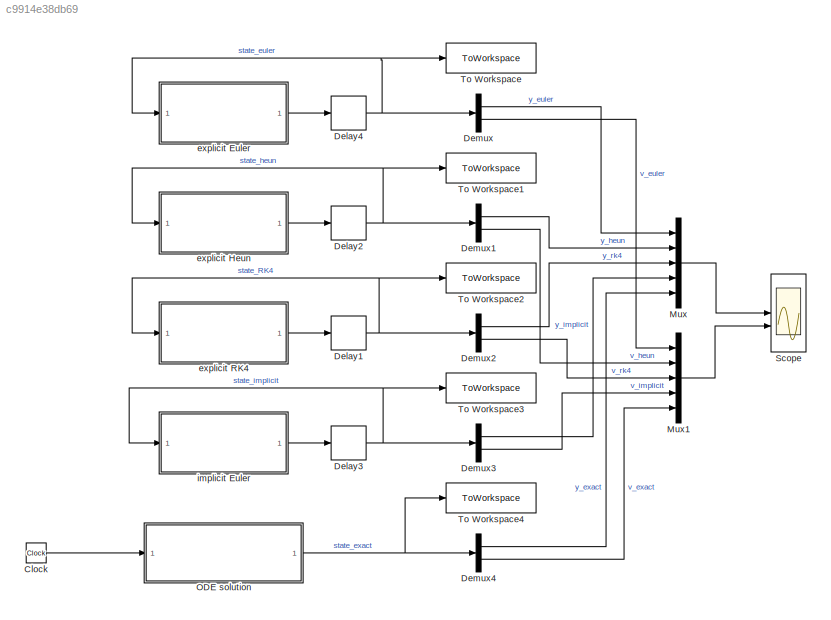
MODEL slx_c9914e38db69
KIND model
CONFIG AbsTol = auto
CONFIG EnableMultiTasking = off
CONFIG FixedStep = timeStep
CONFIG MaxStep = auto
CONFIG MinStep = auto
CONFIG RelTol = 1e-3
CONFIG SampleTimeConstraint = Unconstrained
CONFIG SolverName = ode4
CONFIG StartTime = 0.0
CONFIG StopTime = timeEnd
BLOCK [Clock] Clock
BLOCK [Delay] Delay1
  DelayLength = 1
  InitialCondition = stateInit
  InputPortMap = u0
BLOCK [Delay] Delay2
  DelayLength = 1
  InitialCondition = stateInit
  InputPortMap = u0
BLOCK [Delay] Delay3
  DelayLength = 1
  InitialCondition = stateInit
  InputPortMap = u0
BLOCK [Delay] Delay4
  DelayLength = 1
  InitialCondition = stateInit
  InputPortMap = u0
BLOCK [Demux] Demux
  Outputs = 2
BLOCK [Demux] Demux1
  Outputs = 2
BLOCK [Demux] Demux2
  Outputs = 2
BLOCK [Demux] Demux3
  Outputs = 2
BLOCK [Demux] Demux4
  Outputs = 2
BLOCK [Mux] Mux
  DisplayOption = bar
  Inputs = 5
BLOCK [Mux] Mux1
  DisplayOption = bar
  Inputs = 5
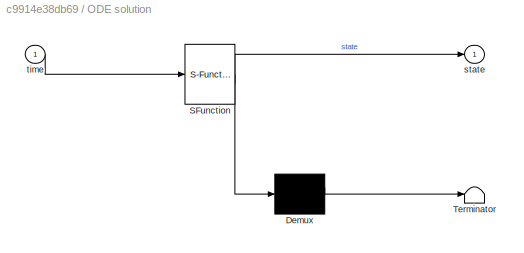
BLOCK [SubSystem] ODE solution
  ErrorFcn = Stateflow.Translate.translate
  PermitHierarchicalResolution = ExplicitOnly
  SFBlockType = MATLAB Function
  TreatAsAtomicUnit = on
BLOCK [Demux] ODE solution/ Demux 
  Outputs = 1
BLOCK [S-Function] ODE solution/ SFunction 
  EnableBusSupport = on
  FunctionName = sf_sfun
  Parameters = stateInit,sys
  PortCounts = [1 2]
  SFcnIsStateOwnerBlock = off
  SFunctionDeploymentMode = off
  Tag = Stateflow S-Function 5
BLOCK [Terminator] ODE solution/ Terminator 
BLOCK [Outport] ODE solution/state
BLOCK [Inport] ODE solution/time
BLOCK [Scope] Scope
  Floating = off
  NumInputPorts = 2
  ScopeSpecificationString = Simulink.scopes.TimeScopeBlockCfg('CurrentConfiguration', extmgr.ConfigurationSet(extmgr.Configuration('Core','General UI',true),extmgr.Configuration('Core','Source UI',true),extmgr.Configuration('Sources','WiredSimulink',true),extmgr.Configuration('Visuals','Time Domain',true,'SerializedDisplays',{struct('MinYLimReal','-1.58448','MaxYLimReal','1.59863','YLabelReal','','MinYLimMag','0.00000','MaxY...<+2356ch>
BLOCK [ToWorkspace] To Workspace
  FixptAsFi = on
  MaxDataPoints = inf
  SampleTime = -1
  SaveFormat = Timeseries
  VariableName = state_euler
BLOCK [ToWorkspace] To Workspace1
  FixptAsFi = on
  MaxDataPoints = inf
  SampleTime = -1
  SaveFormat = Timeseries
  VariableName = state_heun
BLOCK [ToWorkspace] To Workspace2
  FixptAsFi = on
  MaxDataPoints = inf
  SampleTime = -1
  SaveFormat = Timeseries
  VariableName = state_rk4
BLOCK [ToWorkspace] To Workspace3
  FixptAsFi = on
  MaxDataPoints = inf
  SampleTime = -1
  SaveFormat = Timeseries
  VariableName = state_implicit
BLOCK [ToWorkspace] To Workspace4
  FixptAsFi = on
  MaxDataPoints = inf
  SampleTime = -1
  SaveFormat = Timeseries
  VariableName = state_exact
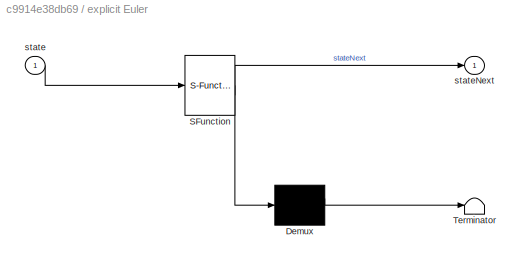
BLOCK [SubSystem] explicit Euler
  ErrorFcn = Stateflow.Translate.translate
  PermitHierarchicalResolution = ExplicitOnly
  SFBlockType = MATLAB Function
  TreatAsAtomicUnit = on
BLOCK [Demux] explicit Euler/ Demux 
  Outputs = 1
BLOCK [S-Function] explicit Euler/ SFunction 
  EnableBusSupport = on
  FunctionName = sf_sfun
  Parameters = sys,timeStep
  PortCounts = [1 2]
  SFcnIsStateOwnerBlock = off
  SFunctionDeploymentMode = off
  Tag = Stateflow S-Function 2
BLOCK [Terminator] explicit Euler/ Terminator 
BLOCK [Inport] explicit Euler/state
BLOCK [Outport] explicit Euler/stateNext
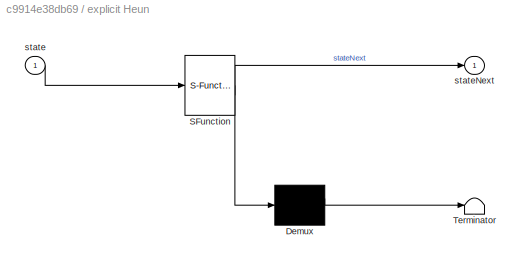
BLOCK [SubSystem] explicit Heun
  ErrorFcn = Stateflow.Translate.translate
  PermitHierarchicalResolution = ExplicitOnly
  SFBlockType = MATLAB Function
  TreatAsAtomicUnit = on
BLOCK [Demux] explicit Heun/ Demux 
  Outputs = 1
BLOCK [S-Function] explicit Heun/ SFunction 
  EnableBusSupport = on
  FunctionName = sf_sfun
  Parameters = sys,timeStep
  PortCounts = [1 2]
  SFcnIsStateOwnerBlock = off
  SFunctionDeploymentMode = off
  Tag = Stateflow S-Function 1
BLOCK [Terminator] explicit Heun/ Terminator 
BLOCK [Inport] explicit Heun/state
BLOCK [Outport] explicit Heun/stateNext
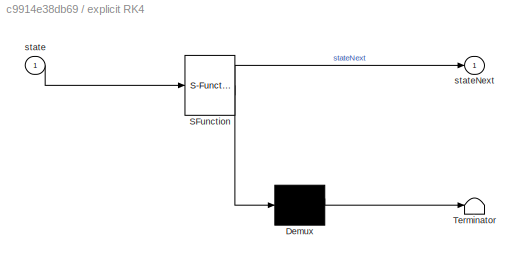
BLOCK [SubSystem] explicit RK4
  ErrorFcn = Stateflow.Translate.translate
  PermitHierarchicalResolution = ExplicitOnly
  SFBlockType = MATLAB Function
  TreatAsAtomicUnit = on
BLOCK [Demux] explicit RK4/ Demux 
  Outputs = 1
BLOCK [S-Function] explicit RK4/ SFunction 
  EnableBusSupport = on
  FunctionName = sf_sfun
  Parameters = sys,timeStep
  PortCounts = [1 2]
  SFcnIsStateOwnerBlock = off
  SFunctionDeploymentMode = off
  Tag = Stateflow S-Function 3
BLOCK [Terminator] explicit RK4/ Terminator 
BLOCK [Inport] explicit RK4/state
BLOCK [Outport] explicit RK4/stateNext
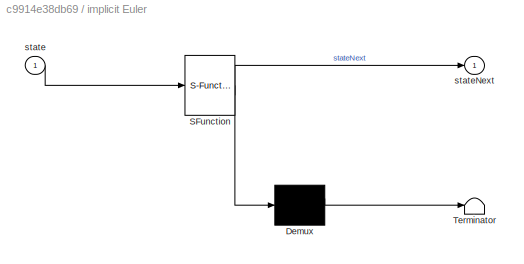
BLOCK [SubSystem] implicit Euler
  ErrorFcn = Stateflow.Translate.translate
  PermitHierarchicalResolution = ExplicitOnly
  SFBlockType = MATLAB Function
  TreatAsAtomicUnit = on
BLOCK [Demux] implicit Euler/ Demux 
  Outputs = 1
BLOCK [S-Function] implicit Euler/ SFunction 
  EnableBusSupport = on
  FunctionName = sf_sfun
  Parameters = sys,timeStep
  PortCounts = [1 2]
  SFcnIsStateOwnerBlock = off
  SFunctionDeploymentMode = off
  Tag = Stateflow S-Function 6
BLOCK [Terminator] implicit Euler/ Terminator 
BLOCK [Inport] implicit Euler/state
BLOCK [Outport] implicit Euler/stateNext
LINE Clock:1 -> ODE solution:1
NET Delay1:1 -> Demux2:1, To Workspace2:1, explicit RK4:1
NET Delay2:1 -> Demux1:1, To Workspace1:1, explicit Heun:1
NET Delay3:1 -> Demux3:1, To Workspace3:1, implicit Euler:1
NET Delay4:1 -> Demux:1, To Workspace:1, explicit Euler:1
LINE Demux1:1 -> Mux:2
LINE Demux1:2 -> Mux1:2
LINE Demux2:1 -> Mux:3
LINE Demux2:2 -> Mux1:3
LINE Demux3:1 -> Mux:4
LINE Demux3:2 -> Mux1:4
LINE Demux4:1 -> Mux:5
LINE Demux4:2 -> Mux1:5
LINE Demux:1 -> Mux:1
LINE Demux:2 -> Mux1:1
LINE Mux1:1 -> Scope:2
LINE Mux:1 -> Scope:1
NET ODE solution:1 -> Demux4:1, To Workspace4:1
LINE explicit Euler:1 -> Delay4:1
LINE explicit Heun:1 -> Delay2:1
LINE explicit RK4:1 -> Delay1:1
LINE implicit Euler:1 -> Delay3:1
note: NET lines group one-source signal fan-out (src -> all destinations, sorted); 1:1 wires keep LINE
CHART explicit Heun states=1 transitions=1
  STATE_LABEL 'eML_blk_kernel()'
  STATE_LABEL 'SCRIPT:\nfunction stateNext = fcn(state, timeStep, sys)\n\n    h = timeStep;\n    f = mass_spring_model_ode(0,state,sys);\n\n    yNext = state + h * f;\n    stateNext = state + h/2 * (f + mass_spring_model_ode(0+h,yNext,sys));\n\n\n    function dy = mass_spring_model_ode(t, y, sys)\n        % y(1) = p; y(2) = p_dot\n        dy = zeros(2,1);\n        dy(1) = y(2); \n        dy(2) = (-1/sys.mass)*(sys.damping*y(2...<+39ch>'
CHART explicit Euler states=1 transitions=1
  STATE_LABEL 'eML_blk_kernel()'
  STATE_LABEL 'SCRIPT:\nfunction stateNext = fcn(state, timeStep, sys)\n\n    h = timeStep;\n    f = mass_spring_model_ode(0,state,sys);\n    stateNext = state + h * f;\n    \n    function dy = mass_spring_model_ode(t, y, sys)\n        % y(1) = p; y(2) = p_dot\n        dy = zeros(2,1);\n        dy(1) = y(2); \n        dy(2) = (-1/sys.mass)*(sys.damping*y(2) + sys.stiffness*y(1));\n    end\nend\n'
CHART explicit RK4 states=1 transitions=1
  STATE_LABEL 'eML_blk_kernel()'
  STATE_LABEL 'SCRIPT:\nfunction stateNext = fcn(state, timeStep, sys)\n\n    h = timeStep;\n    s1 = mass_spring_model_ode(0,state,sys);\n    s2 = mass_spring_model_ode(0+h/2,state+h/2*s1,sys);\n    s3 = mass_spring_model_ode(0+h/2,state+h/2*s2,sys);\n    s4 = mass_spring_model_ode(0+h,state+h*s3,sys);\n\n\n    stateNext = state + h/6 * (s1+2*s2+2*s3+s4);\n\n    function dy = mass_spring_model_ode(t, y, sys)\n        % y(1)...<+152ch>'
CHART ODE solution states=1 transitions=1
  STATE_LABEL 'eML_blk_kernel()'
  STATE_LABEL 'SCRIPT:\nfunction state = fcn(time, stateInit, sys)\n    w_0 = sqrt(sys.stiffness/sys.mass);\n    deta = sys.damping/(2*sys.mass);\n    w = sqrt(w_0^2-deta^2);\n    p0 = stateInit(1);\n    p0_dot = stateInit(2);\n    \n    state = zeros(2,1);\n    state(1) = exp(-deta*time)*(p0*cos(w*time)+(p0_dot + deta*p0)/w*sin(w*time));\n    state(2) = exp(-deta*time)*( -p0*sin(w*time)*w + (p0_dot + deta*p0)*cos(w*time)...<+23ch>'
CHART implicit Euler states=1 transitions=1
  STATE_LABEL 'eML_blk_kernel()'
  STATE_LABEL 'SCRIPT:\nfunction stateNext = fcn(state, timeStep, sys)\n    \n    h = timeStep;\n    Df = [0 1; -sys.stiffness/sys.mass -sys.damping/sys.mass];\n    \n    x0 = state;\n    f = mass_spring_model_ode(0,x0,sys);\n%     x1 = x0 - inv(eye(length(state))-h*Df)*(h*f);\n% \n%     while (norm(x1-x0)>0.0001)\n%         x0 = x1;\n%         x1 = x0 - inv(eye(length(state))-h*Df)*(x0 - h*f - state);\n%     end\n% \n%     st...<+284ch>'
CHART  states=0 transitions=0
CHART  states=0 transitions=0
CHART  states=0 transitions=0
CHART  states=0 transitions=0
CHART  states=0 transitions=0
